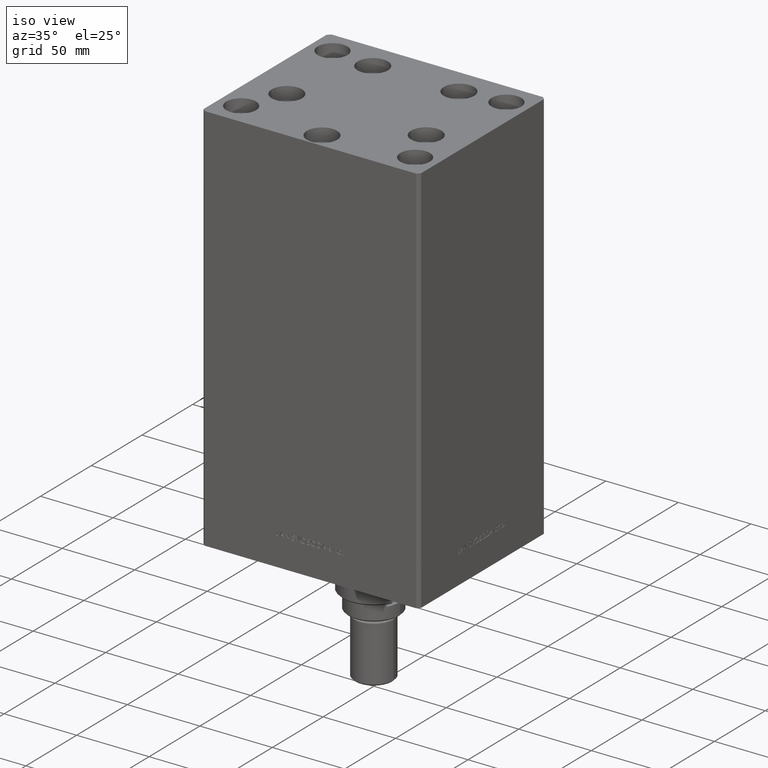
[diagram: clean part render]
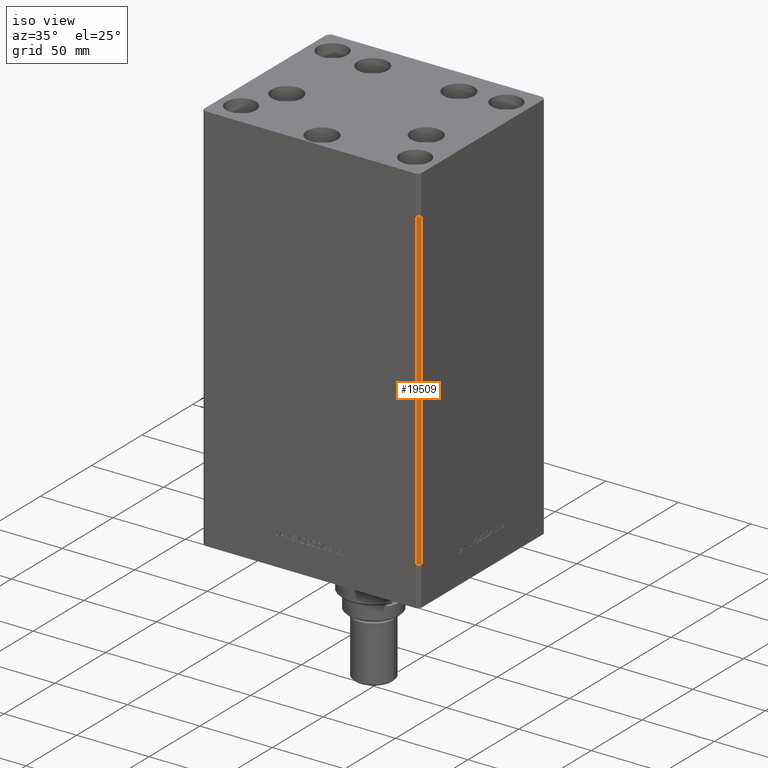
[diagram: same view with one face highlighted and labeled with its STEP entity id]
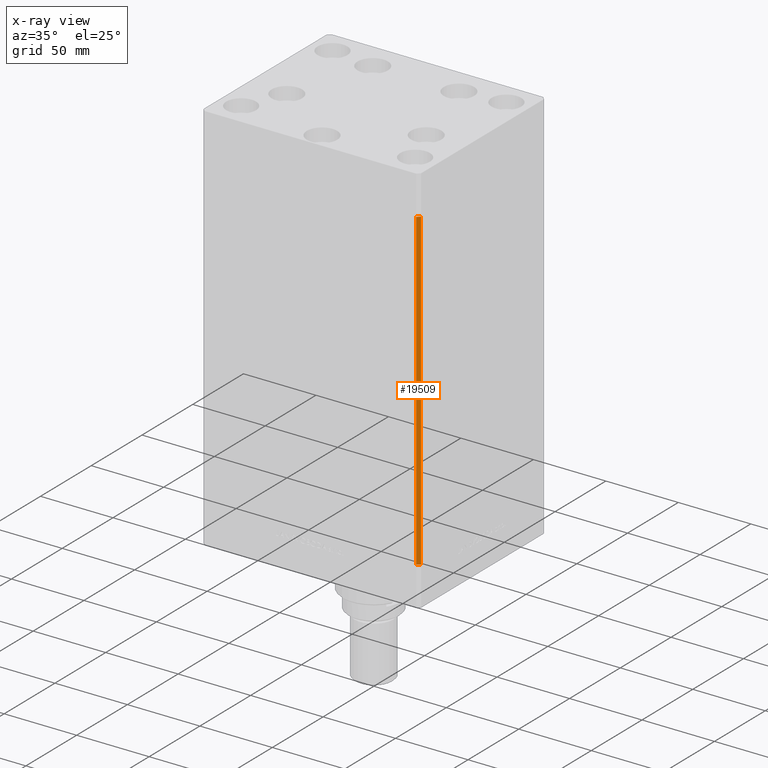
[diagram: x-ray of the same camera — body ghosted, the highlighted face saturated]
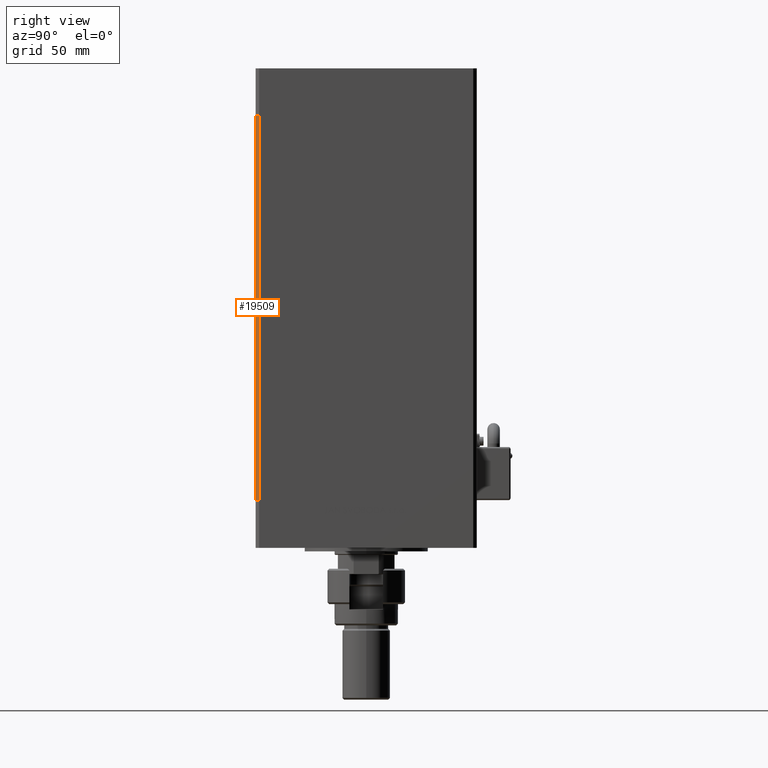
[diagram: same view with one face highlighted and labeled with its STEP entity id]
A machine part, iso view. The second image highlights one B-rep face of the part: STEP entity #19509.
The next image is the same camera in x-ray: the body ghosted, the highlighted face saturated — about 0% of this face is hidden behind the body in this view.
A second angle (right view) of the same face is appended — the face is thin or edge-on in the first view.
In plain terms, the highlighted planar face has unit normal (0.7071, -0.7071, 0).
Its self-contained STEP definition (entity closure, byte-faithful):
#1438 = ORIENTED_EDGE ( 'NONE', *, *, #12779, .T. ) ;
#2354 = LINE ( 'NONE', #26270, #40456 ) ;
#5310 = AXIS2_PLACEMENT_3D ( 'NONE', #27857, #39949, #16304 ) ;
#6413 = CARTESIAN_POINT ( 'NONE',  ( 72.99999999999998579, -62.50000000000000000, 0.000000000000000000 ) ) ;
#8597 = LINE ( 'NONE', #8854, #38416 ) ;
#8854 = CARTESIAN_POINT ( 'NONE',  ( 74.99999999999998579, -60.50000000000000000, 0.000000000000000000 ) ) ;
#12779 = EDGE_CURVE ( 'NONE', #12983, #48194, #31144, .T. ) ;
#12983 = VERTEX_POINT ( 'NONE', #25941 ) ;
#13097 = CARTESIAN_POINT ( 'NONE',  ( 74.99999999999998579, -60.50000000000000000, 0.000000000000000000 ) ) ;
#15732 = CARTESIAN_POINT ( 'NONE',  ( 74.99999999999998579, -60.50000000000000000, 217.0000000000000000 ) ) ;
#15947 = VECTOR ( 'NONE', #51705, 1000.000000000000000 ) ;
#16304 = DIRECTION ( 'NONE',  ( 0.7071067811865474617, 0.7071067811865474617, 0.000000000000000000 ) ) ;
#17066 = VERTEX_POINT ( 'NONE', #13097 ) ;
#18216 = DIRECTION ( 'NONE',  ( -0.7071067811865474617, -0.7071067811865474617, 0.000000000000000000 ) ) ;
#19398 = EDGE_CURVE ( 'NONE', #22038, #12983, #2354, .T. ) ;
#19509 = ADVANCED_FACE ( 'NONE', ( #35657 ), #44233, .T. ) ;
#21048 = EDGE_CURVE ( 'NONE', #22038, #17066, #51968, .T. ) ;
#22038 = VERTEX_POINT ( 'NONE', #15732 ) ;
#25226 = DIRECTION ( 'NONE',  ( -0.7071067811865474617, -0.7071067811865474617, 0.000000000000000000 ) ) ;
#25941 = CARTESIAN_POINT ( 'NONE',  ( 72.99999999999998579, -62.50000000000000000, 217.0000000000000000 ) ) ;
#26270 = CARTESIAN_POINT ( 'NONE',  ( 74.99999999999998579, -60.50000000000000000, 217.0000000000000000 ) ) ;
#27553 = CARTESIAN_POINT ( 'NONE',  ( 74.99999999999998579, -60.50000000000000000, 217.0000000000000000 ) ) ;
#27857 = CARTESIAN_POINT ( 'NONE',  ( 74.99999999999998579, -60.50000000000000000, 217.0000000000000000 ) ) ;
#28379 = DIRECTION ( 'NONE',  ( -0.000000000000000000, -0.000000000000000000, -1.000000000000000000 ) ) ;
#28632 = ORIENTED_EDGE ( 'NONE', *, *, #19398, .T. ) ;
#28978 = EDGE_CURVE ( 'NONE', #17066, #48194, #8597, .T. ) ;
#31144 = LINE ( 'NONE', #36433, #43653 ) ;
#35657 = FACE_OUTER_BOUND ( 'NONE', #39774, .T. ) ;
#36433 = CARTESIAN_POINT ( 'NONE',  ( 72.99999999999998579, -62.50000000000000000, 217.0000000000000000 ) ) ;
#38416 = VECTOR ( 'NONE', #25226, 1000.000000000000114 ) ;
#39184 = ORIENTED_EDGE ( 'NONE', *, *, #28978, .F. ) ;
#39774 = EDGE_LOOP ( 'NONE', ( #39184, #43908, #28632, #1438 ) ) ;
#39949 = DIRECTION ( 'NONE',  ( 0.7071067811865475727, -0.7071067811865475727, 0.000000000000000000 ) ) ;
#40456 = VECTOR ( 'NONE', #18216, 1000.000000000000114 ) ;
#43653 = VECTOR ( 'NONE', #28379, 1000.000000000000000 ) ;
#43908 = ORIENTED_EDGE ( 'NONE', *, *, #21048, .F. ) ;
#44233 = PLANE ( 'NONE',  #5310 ) ;
#48194 = VERTEX_POINT ( 'NONE', #6413 ) ;
#51705 = DIRECTION ( 'NONE',  ( -0.000000000000000000, -0.000000000000000000, -1.000000000000000000 ) ) ;
#51968 = LINE ( 'NONE', #27553, #15947 ) ;